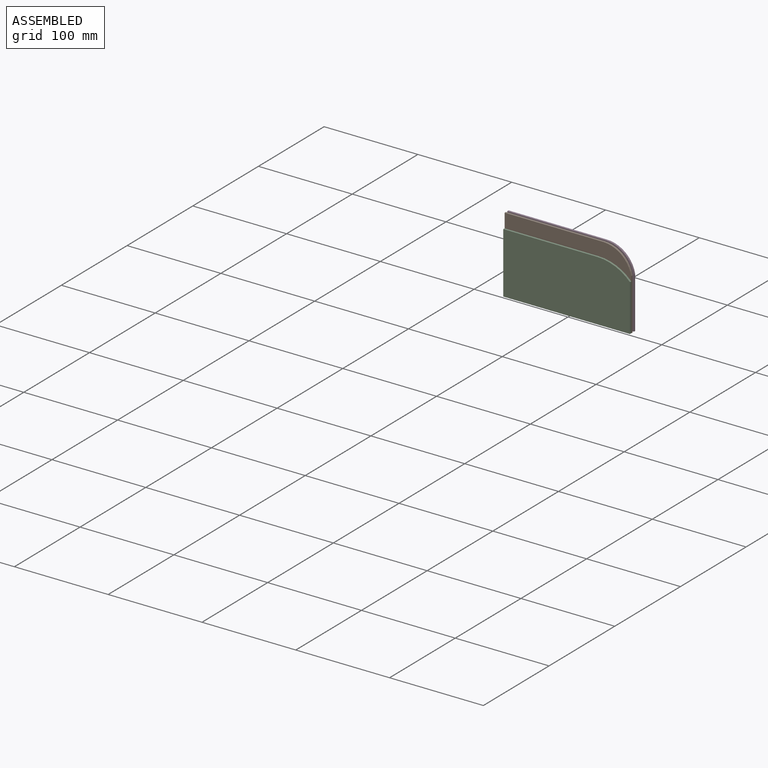
[diagram: assembled view]
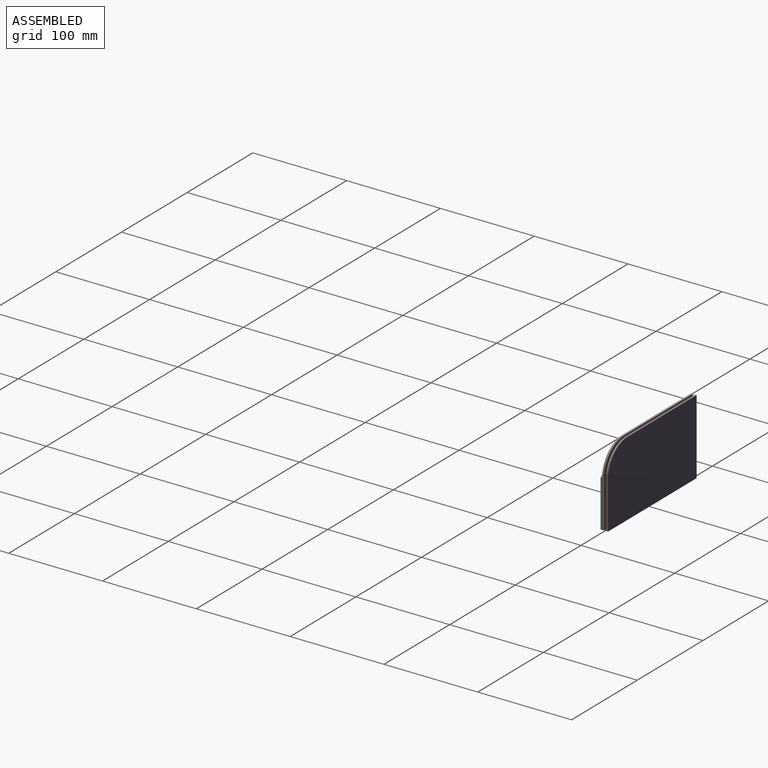
[diagram: assembled view, second angle]
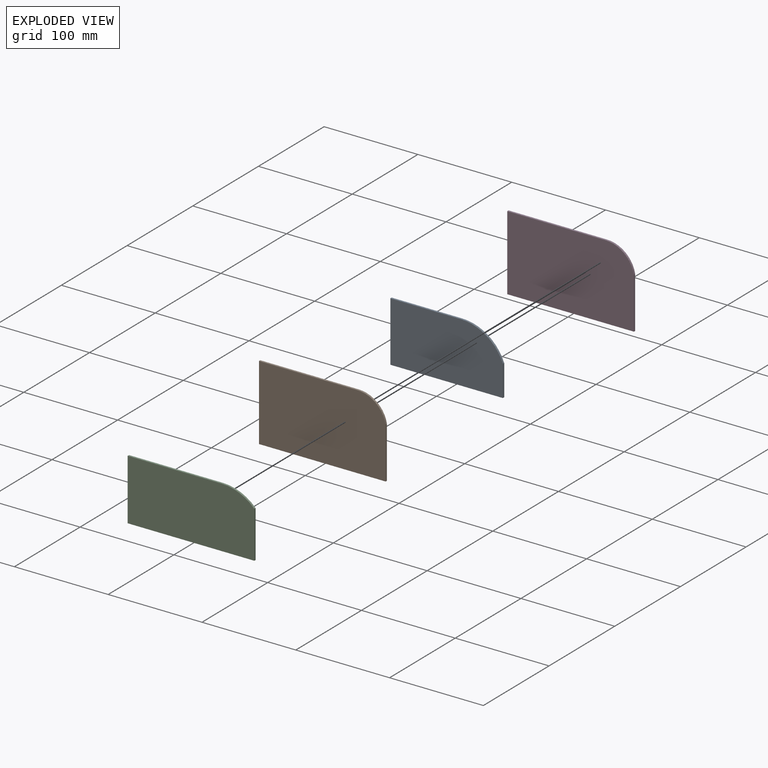
[diagram: exploded view]
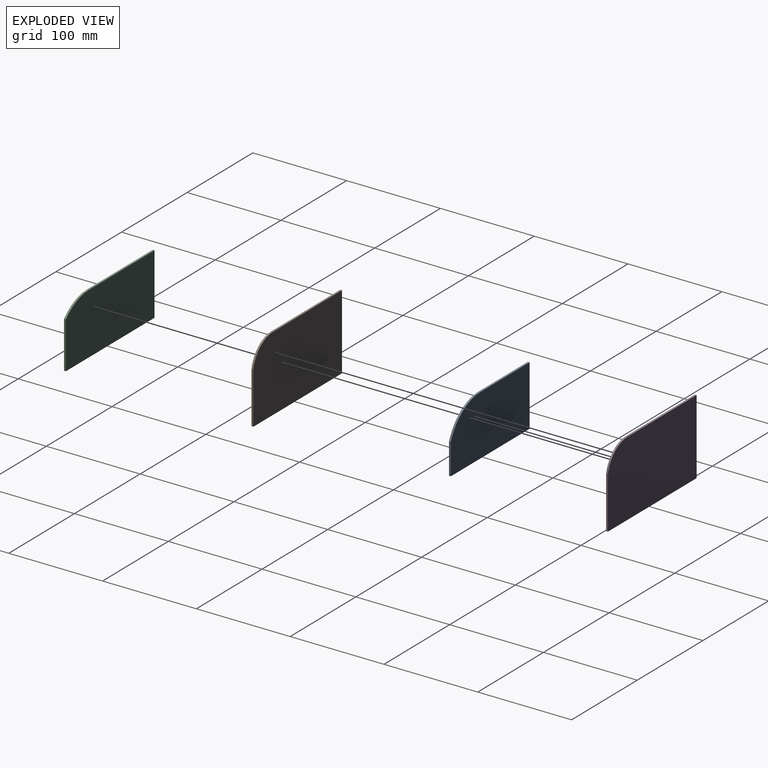
[diagram: exploded view, second angle]
ASSEMBLY  parts=4 mates=3
PART A: 7 faces, bbox 120x2x64 mm
  f0: plane 64x2mm, normal (-1,0,0), area 128mm2, adj f1,f4,f5,f6
  f1: plane 120x2mm, normal (0,0,-1), area 240mm2, adj f0,f2,f5,f6
  f2: plane 33x2mm, normal (1,0,0), area 66mm2, adj f1,f3,f5,f6
  f3: cylinder r=48.16mm len=45mm, axis (0,1,0), area 116.2mm2, adj f2,f4,f5,f6
  f4: plane 75x2mm, normal (0,0,1), area 150mm2, adj f0,f3,f5,f6
  f5: plane 120x64mm, normal (0,-1,0), area 7298.1mm2, adj f0,f1,f2,f3,f4
  f6: plane 120x64mm, normal (0,1,0), area 7298.1mm2, adj f0,f1,f2,f3,f4
PART B: 7 faces, bbox 135x2x80 mm
  f0: plane 80x2mm, normal (-1,0,0), area 160mm2, adj f1,f4,f5,f6
  f1: plane 135x2mm, normal (0,0,-1), area 270mm2, adj f0,f2,f5,f6
  f2: plane 55x2mm, normal (1,0,0), area 110mm2, adj f1,f3,f5,f6
  f3: cylinder r=30.5mm len=30mm, axis (0,1,0), area 84.8mm2, adj f2,f4,f5,f6
  f4: plane 105x2mm, normal (0,0,1), area 210mm2, adj f0,f3,f5,f6
  f5: plane 135x80mm, normal (0,-1,0), area 10613.8mm2, adj f0,f1,f2,f3,f4
  f6: plane 135x80mm, normal (0,1,0), area 10613.8mm2, adj f0,f1,f2,f3,f4
PART C: 7 faces, bbox 135x2x65 mm
  f0: plane 65x2mm, normal (-1,0,0), area 130mm2, adj f1,f4,f5,f6
  f1: plane 135x2mm, normal (0,0,-1), area 270mm2, adj f0,f2,f5,f6
  f2: plane 50x2mm, normal (1,0,0), area 100mm2, adj f1,f3,f5,f6
  f3: cylinder r=48.33mm len=35mm, axis (0,1,0), area 78.3mm2, adj f2,f4,f5,f6
  f4: plane 100x2mm, normal (0,0,1), area 200mm2, adj f0,f3,f5,f6
  f5: plane 135x65mm, normal (0,-1,0), area 8612.5mm2, adj f0,f1,f2,f3,f4
  f6: plane 135x65mm, normal (0,1,0), area 8612.5mm2, adj f0,f1,f2,f3,f4
PART D: same geometry as B
PLACE A t=(-7.5,4,-0.5)mm
PLACE B t=(0,2,7.5)mm
PLACE C at identity fixed
PLACE D t=(0,6,7.5)mm
MATE fastened A.f5 <-> B.f6  axis (0,-1,0) through (-67.5,2,-32.5)mm
MATE fastened C.f6 <-> B.f5  axis (0,1,0) through (-67.5,0,-32.5)mm
MATE fastened D.f5 <-> A.f6  axis (0,-1,0) through (-67.5,4,-32.5)mm
